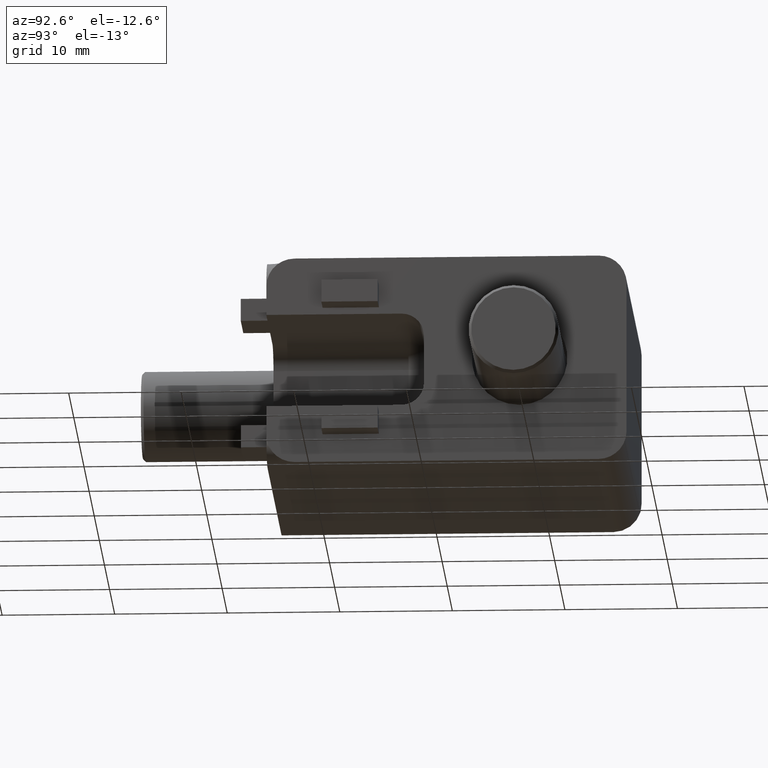
[diagram: clean part render]
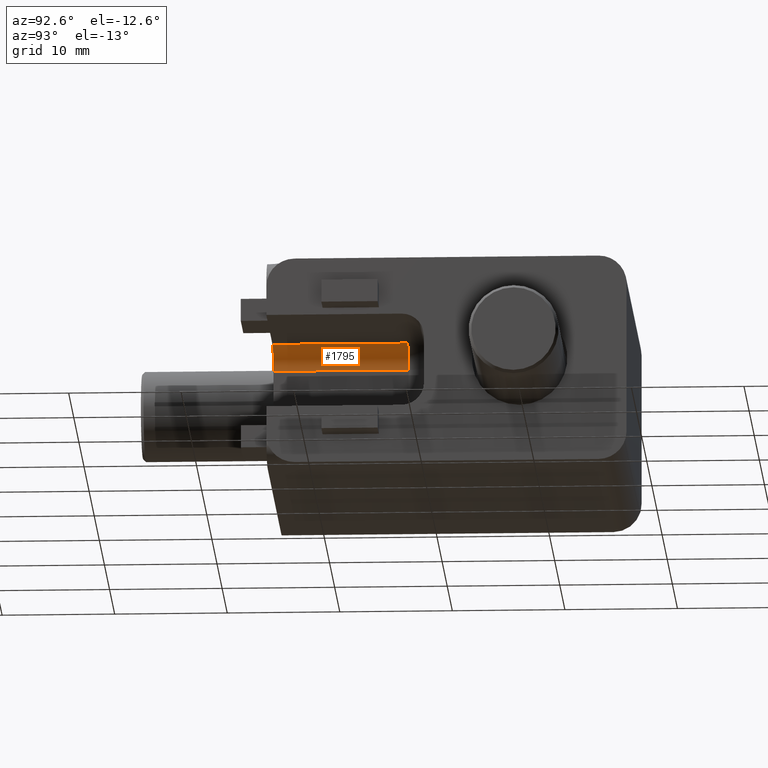
[diagram: same view with one face highlighted and labeled with its STEP entity id]
A machine part, auxiliary view. The second image highlights one B-rep face of the part: STEP entity #1795.
In plain terms, the highlighted cylindrical surface (edge-blend (fillet) strip) has radius 2 mm, axis along (0, 1, 0).
Its self-contained STEP definition (entity closure, byte-faithful):
#157=FACE_OUTER_BOUND('',#278,.T.);
#278=EDGE_LOOP('',(#1375,#1376,#1377,#1378));
#442=LINE('',#2925,#616);
#443=LINE('',#2928,#617);
#616=VECTOR('',#2282,1000.);
#617=VECTOR('',#2285,1000.);
#754=CIRCLE('',#1952,2.);
#763=CIRCLE('',#1973,2.);
#861=VERTEX_POINT('',#2874);
#862=VERTEX_POINT('',#2876);
#876=VERTEX_POINT('',#2923);
#877=VERTEX_POINT('',#2927);
#1042=EDGE_CURVE('',#861,#862,#754,.T.);
#1067=EDGE_CURVE('',#876,#861,#442,.T.);
#1068=EDGE_CURVE('',#862,#877,#443,.T.);
#1073=EDGE_CURVE('',#877,#876,#763,.T.);
#1375=ORIENTED_EDGE('',*,*,#1042,.F.);
#1376=ORIENTED_EDGE('',*,*,#1067,.F.);
#1377=ORIENTED_EDGE('',*,*,#1073,.F.);
#1378=ORIENTED_EDGE('',*,*,#1068,.F.);
#1749=CYLINDRICAL_SURFACE('',#1972,2.);
#1795=ADVANCED_FACE('',(#157),#1749,.F.);
#1952=AXIS2_PLACEMENT_3D('',#2877,#2230,#2231);
#1972=AXIS2_PLACEMENT_3D('',#2936,#2292,#2293);
#1973=AXIS2_PLACEMENT_3D('',#2937,#2294,#2295);
#2230=DIRECTION('center_axis',(0.,1.,0.));
#2231=DIRECTION('ref_axis',(0.,0.,1.));
#2282=DIRECTION('',(0.,-1.,0.));
#2285=DIRECTION('',(0.,1.,0.));
#2292=DIRECTION('center_axis',(0.,1.,0.));
#2293=DIRECTION('ref_axis',(0.,0.,1.));
#2294=DIRECTION('center_axis',(0.,-1.,0.));
#2295=DIRECTION('ref_axis',(0.,0.,-1.));
#2874=CARTESIAN_POINT('',(2.72485697219707,-13.947714355045,2.15));
#2876=CARTESIAN_POINT('',(4.72485697219708,-13.947714355045,4.15));
#2877=CARTESIAN_POINT('Origin',(4.72485697219707,-13.947714355045,2.15));
#2923=CARTESIAN_POINT('',(2.72485697219707,-1.94771435504495,2.15));
#2925=CARTESIAN_POINT('',(2.72485697219707,-13.947714355045,2.15));
#2927=CARTESIAN_POINT('',(4.72485697219707,-1.94771435504495,4.15));
#2928=CARTESIAN_POINT('',(4.72485697219707,0.0522856449550502,4.15));
#2936=CARTESIAN_POINT('Origin',(4.72485697219707,0.0522856449550502,2.15));
#2937=CARTESIAN_POINT('Origin',(4.72485697219707,-1.94771435504495,2.15));